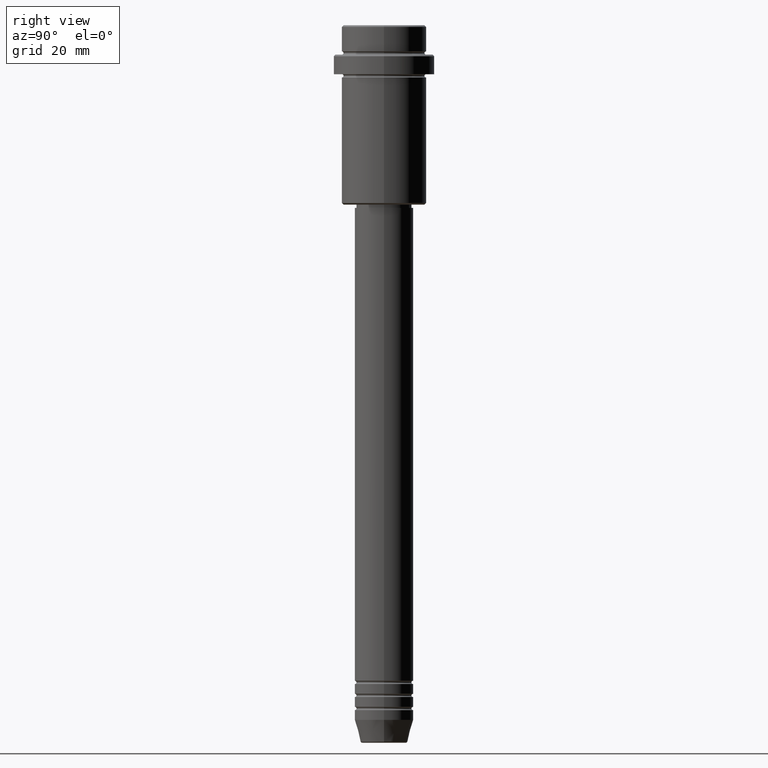
[diagram: clean part render]
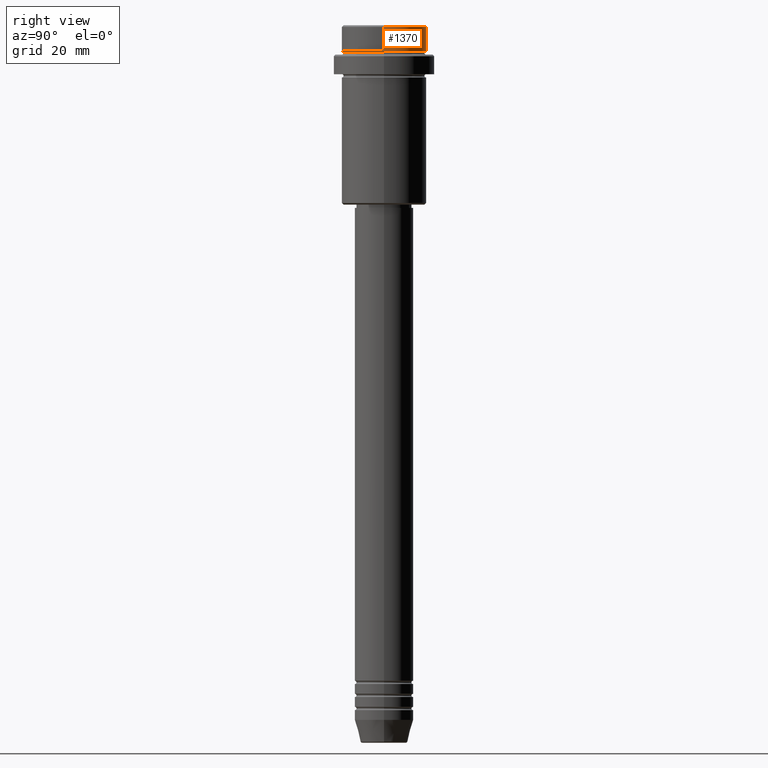
[diagram: same view with one face highlighted and labeled with its STEP entity id]
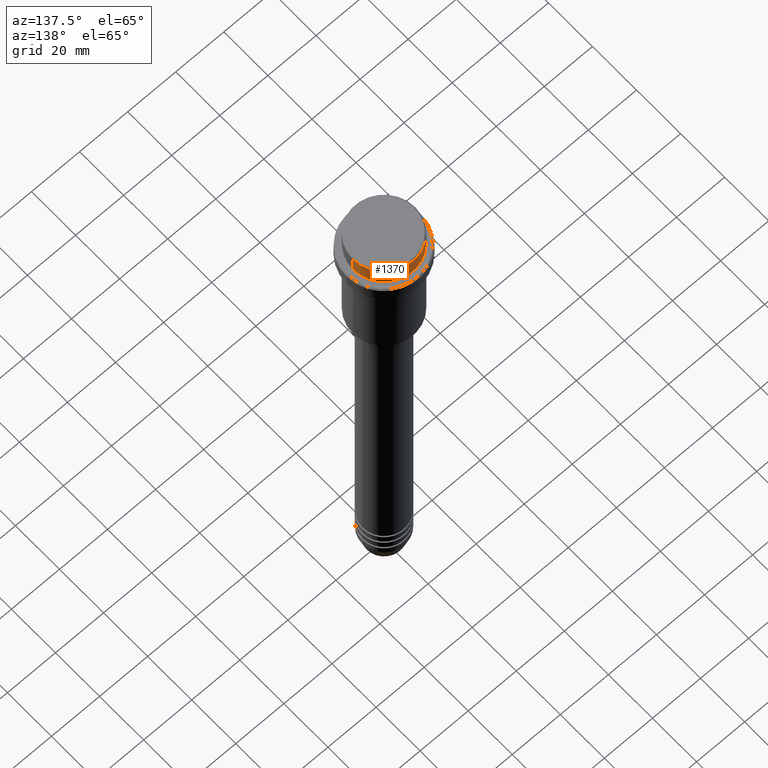
[diagram: same view with one face highlighted and labeled with its STEP entity id]
A machine part, right view. The second image highlights one B-rep face of the part: STEP entity #1370.
A second angle (auxiliary view) of the same face is appended — the face is thin or edge-on in the first view.
In plain terms, the highlighted cylindrical surface (partial cylindrical patch) has radius 13 mm, axis along (-0, -0, 1).
Its self-contained STEP definition (entity closure, byte-faithful):
#25 = VECTOR ( 'NONE', #68, 1000.000000000000000 ) ;
#68 = DIRECTION ( 'NONE',  ( -0.000000000000000000, -0.000000000000000000, 1.000000000000000000 ) ) ;
#97 = ORIENTED_EDGE ( 'NONE', *, *, #1031, .T. ) ;
#104 = VERTEX_POINT ( 'NONE', #1042 ) ;
#131 = EDGE_CURVE ( 'NONE', #104, #1388, #1406, .T. ) ;
#190 = DIRECTION ( 'NONE',  ( 1.000000000000000000, 0.000000000000000000, 0.000000000000000000 ) ) ;
#201 = CARTESIAN_POINT ( 'NONE',  ( 12.99999999999999822, 0.000000000000000000, -0.4999999999999483746 ) ) ;
#251 = AXIS2_PLACEMENT_3D ( 'NONE', #964, #1193, #190 ) ;
#290 = CARTESIAN_POINT ( 'NONE',  ( 0.000000000000000000, 0.000000000000000000, 0.000000000000000000 ) ) ;
#304 = CARTESIAN_POINT ( 'NONE',  ( 12.99999999999999822, 0.000000000000000000, 0.000000000000000000 ) ) ;
#323 = VERTEX_POINT ( 'NONE', #1320 ) ;
#388 = AXIS2_PLACEMENT_3D ( 'NONE', #290, #1086, #1072 ) ;
#396 = CYLINDRICAL_SURFACE ( 'NONE', #388, 12.99999999999999822 ) ;
#426 = DIRECTION ( 'NONE',  ( -0.000000000000000000, -0.000000000000000000, 1.000000000000000000 ) ) ;
#455 = ORIENTED_EDGE ( 'NONE', *, *, #1355, .F. ) ;
#756 = LINE ( 'NONE', #957, #1295 ) ;
#772 = EDGE_LOOP ( 'NONE', ( #1121, #97, #992, #455 ) ) ;
#847 = DIRECTION ( 'NONE',  ( 0.000000000000000000, 0.000000000000000000, -1.000000000000000000 ) ) ;
#957 = CARTESIAN_POINT ( 'NONE',  ( -12.99999999999999822, 1.592040838891558898E-15, 0.000000000000000000 ) ) ;
#962 = DIRECTION ( 'NONE',  ( 1.000000000000000000, 0.000000000000000000, 0.000000000000000000 ) ) ;
#964 = CARTESIAN_POINT ( 'NONE',  ( 0.000000000000000000, 0.000000000000000000, -7.999999999999998224 ) ) ;
#992 = ORIENTED_EDGE ( 'NONE', *, *, #131, .T. ) ;
#1031 = EDGE_CURVE ( 'NONE', #1044, #104, #756, .T. ) ;
#1042 = CARTESIAN_POINT ( 'NONE',  ( -12.99999999999999822, 1.592040838891558898E-15, -0.4999999999999483746 ) ) ;
#1044 = VERTEX_POINT ( 'NONE', #1280 ) ;
#1046 = AXIS2_PLACEMENT_3D ( 'NONE', #1249, #847, #962 ) ;
#1072 = DIRECTION ( 'NONE',  ( 1.000000000000000000, 0.000000000000000000, 0.000000000000000000 ) ) ;
#1086 = DIRECTION ( 'NONE',  ( -0.000000000000000000, -0.000000000000000000, 1.000000000000000000 ) ) ;
#1121 = ORIENTED_EDGE ( 'NONE', *, *, #1125, .T. ) ;
#1125 = EDGE_CURVE ( 'NONE', #323, #1044, #1201, .T. ) ;
#1193 = DIRECTION ( 'NONE',  ( -0.000000000000000000, -0.000000000000000000, 1.000000000000000000 ) ) ;
#1199 = LINE ( 'NONE', #304, #25 ) ;
#1201 = CIRCLE ( 'NONE', #251, 12.99999999999999822 ) ;
#1249 = CARTESIAN_POINT ( 'NONE',  ( 0.000000000000000000, 0.000000000000000000, -0.4999999999999483746 ) ) ;
#1280 = CARTESIAN_POINT ( 'NONE',  ( -12.99999999999999822, 1.592040838891558898E-15, -7.999999999999998224 ) ) ;
#1295 = VECTOR ( 'NONE', #426, 1000.000000000000000 ) ;
#1320 = CARTESIAN_POINT ( 'NONE',  ( 12.99999999999999822, 0.000000000000000000, -7.999999999999998224 ) ) ;
#1355 = EDGE_CURVE ( 'NONE', #323, #1388, #1199, .T. ) ;
#1370 = ADVANCED_FACE ( 'NONE', ( #1403 ), #396, .T. ) ;
#1388 = VERTEX_POINT ( 'NONE', #201 ) ;
#1403 = FACE_OUTER_BOUND ( 'NONE', #772, .T. ) ;
#1406 = CIRCLE ( 'NONE', #1046, 12.99999999999999822 ) ;